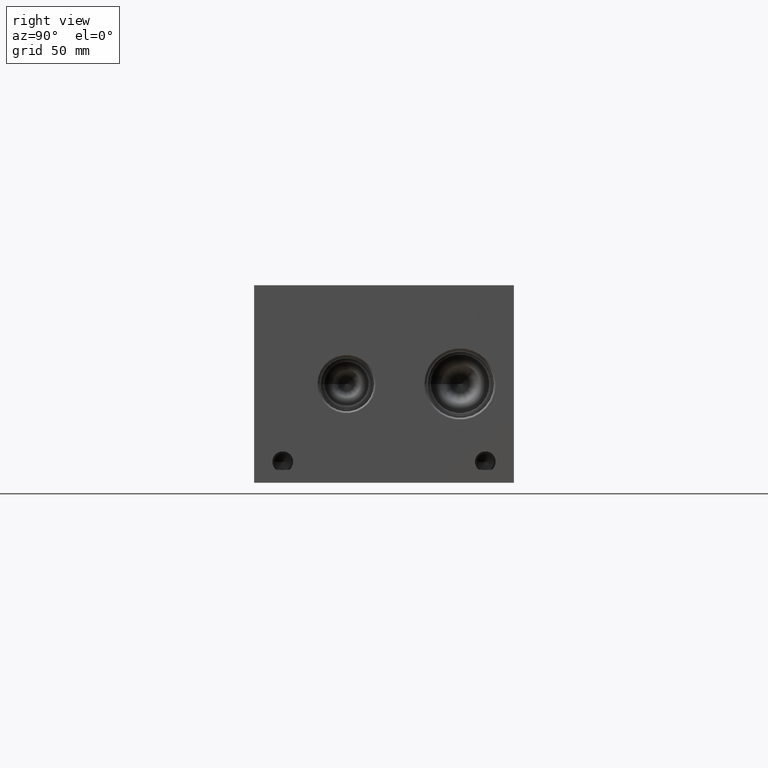
[diagram: clean part render]
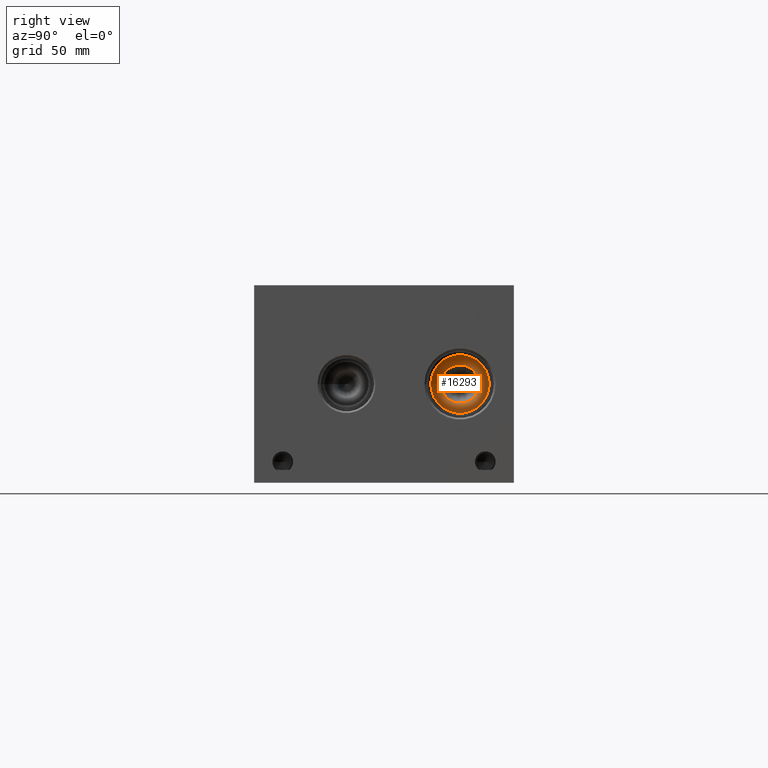
[diagram: same view with one face highlighted and labeled with its STEP entity id]
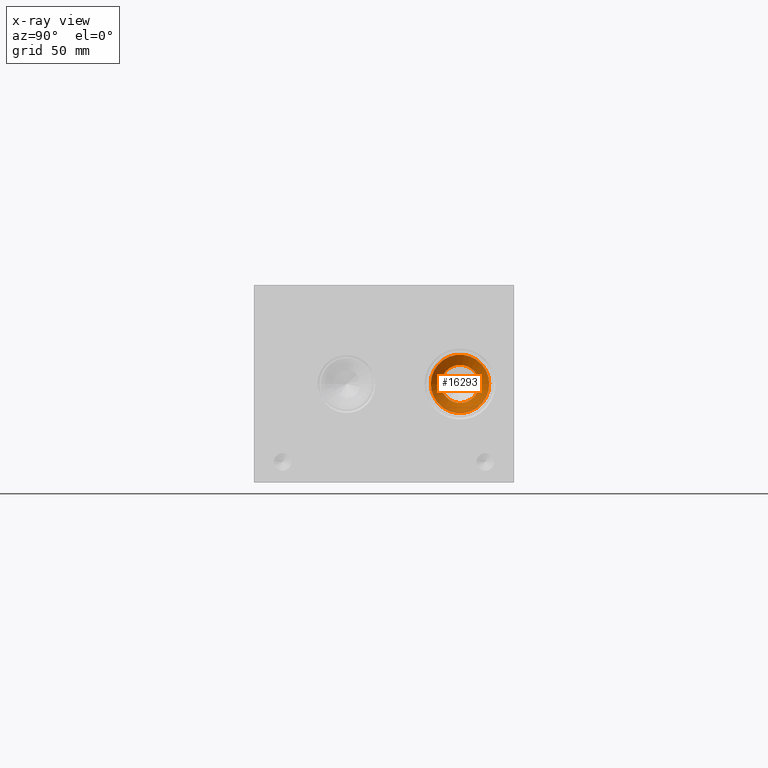
[diagram: x-ray of the same camera — body ghosted, the highlighted face saturated]
A machine part, right view. The second image highlights one B-rep face of the part: STEP entity #16293.
The next image is the same camera in x-ray: the body ghosted, the highlighted face saturated — about 0% of this face is hidden behind the body in this view.
In plain terms, the highlighted conical surface has half-angle 60 deg.
Its self-contained STEP definition (entity closure, byte-faithful):
#69=CONICAL_SURFACE('',#17210,8.9281,1.0471975511966);
#704=CIRCLE('',#17211,17.8562);
#705=CIRCLE('',#17212,11.6604813038567);
#706=CIRCLE('',#17213,17.8562);
#2239=FACE_OUTER_BOUND('',#3196,.T.);
#3196=EDGE_LOOP('',(#13803,#13804,#13805,#13806,#13807));
#4669=LINE('',#27874,#6046);
#6046=VECTOR('',#20378,8.9281);
#7456=VERTEX_POINT('',#27870);
#7457=VERTEX_POINT('',#27871);
#7458=VERTEX_POINT('',#27873);
#9660=EDGE_CURVE('',#7456,#7457,#704,.T.);
#9661=EDGE_CURVE('',#7457,#7458,#4669,.T.);
#9662=EDGE_CURVE('',#7458,#7458,#705,.T.);
#9663=EDGE_CURVE('',#7457,#7456,#706,.T.);
#13803=ORIENTED_EDGE('',*,*,#9660,.T.);
#13804=ORIENTED_EDGE('',*,*,#9661,.T.);
#13805=ORIENTED_EDGE('',*,*,#9662,.F.);
#13806=ORIENTED_EDGE('',*,*,#9661,.F.);
#13807=ORIENTED_EDGE('',*,*,#9663,.T.);
#16293=ADVANCED_FACE('',(#2239),#69,.F.);
#17210=AXIS2_PLACEMENT_3D('',#27869,#20374,#20375);
#17211=AXIS2_PLACEMENT_3D('',#27872,#20376,#20377);
#17212=AXIS2_PLACEMENT_3D('',#27875,#20379,#20380);
#17213=AXIS2_PLACEMENT_3D('',#27876,#20381,#20382);
#20374=DIRECTION('center_axis',(1.,0.,0.));
#20375=DIRECTION('ref_axis',(0.,1.,0.));
#20376=DIRECTION('center_axis',(1.,0.,0.));
#20377=DIRECTION('ref_axis',(0.,1.,0.));
#20378=DIRECTION('',(-0.5,0.866025403784439,1.06057523872491E-16));
#20379=DIRECTION('center_axis',(1.,0.,0.));
#20380=DIRECTION('ref_axis',(0.,1.,0.));
#20381=DIRECTION('center_axis',(1.,0.,0.));
#20382=DIRECTION('ref_axis',(0.,1.,0.));
#27869=CARTESIAN_POINT('Origin',(359.998769061648,125.8316,60.325));
#27870=CARTESIAN_POINT('',(365.15341,143.6878,60.325));
#27871=CARTESIAN_POINT('',(365.15341,107.9754,60.325));
#27872=CARTESIAN_POINT('Origin',(365.15341,125.8316,60.325));
#27873=CARTESIAN_POINT('',(361.576310142959,114.171118696143,60.325));
#27874=CARTESIAN_POINT('',(359.998769061648,116.9035,60.325));
#27875=CARTESIAN_POINT('Origin',(361.576310142959,125.8316,60.325));
#27876=CARTESIAN_POINT('Origin',(365.15341,125.8316,60.325));